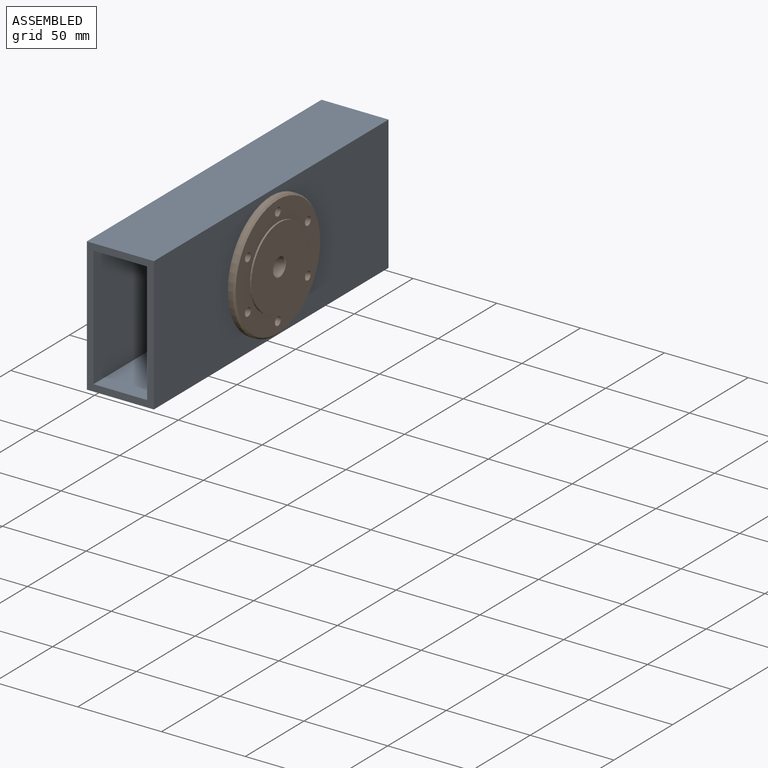
[diagram: assembled view]
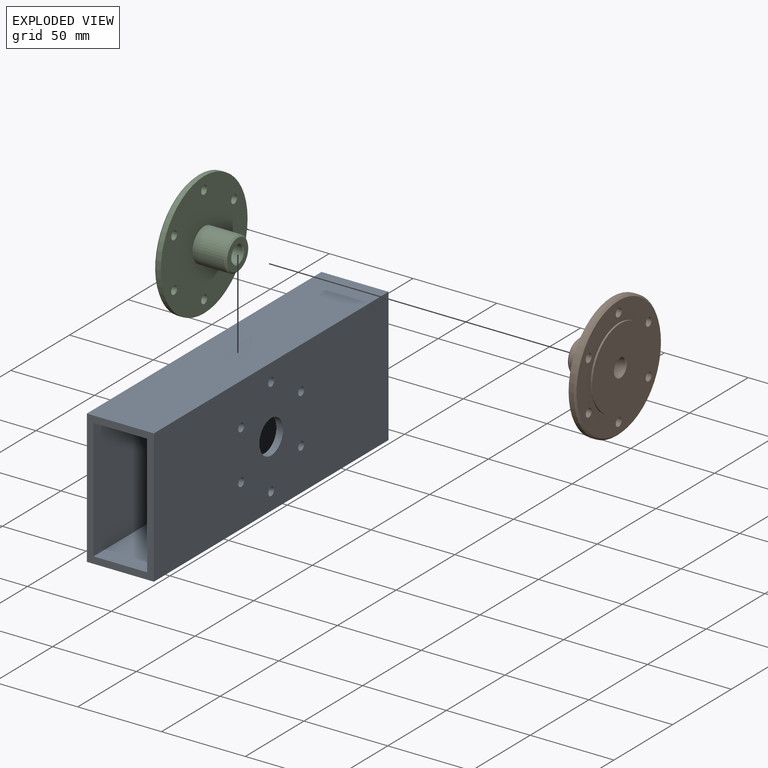
[diagram: exploded view]
GUIDED TOUR — MATED ASSEMBLY (Onshape document 2431cfbd2e3c000338869e15, AutoMate assembly 2431cfbd2e3c000338869e15_644cab37dba1289189b78649_021e0345f2b3809905763d40_default)

This assembly has 3 components, labeled P0..P2 below (a component is one placed occurrence of a part; the same part can appear more than once), held together by 2 mates. A mate is a constraint between two components; its type names the relative motion it leaves free:
  FASTENED — locks the two components together rigidly (no relative motion).
Axis/direction vectors are unit vectors and 'through' points are millimeter coordinates, both in the assembly's world frame.

MATES
  1. FASTENED "Fastened 3": P0 <-> P1, direction (1.000, 0.000, 0.000) through (151.54, -65.89, 65.29) mm
  2. FASTENED "Fastened 1": P0 <-> P2, direction (-1.000, 0.000, 0.000) through (111.54, -65.89, 65.29) mm

ASSEMBLY ORDER
  1. P2 — the base component [order verified]
  2. P0 [order verified]
  3. P1 [order verified]
Order-tag legend:
  [order verified] — this step's position reverses a verified removal order: the component was checked to insert without passing through the ones already placed.

Of the 3 components, 3 carry the full construction recipe — the FeatureScript program that regenerates the part's solid from scratch; the rest are supplied as boundary geometry only.
Each toured component is shown spotlighted twice — in the assembled view, then in the exploded view, where a leader line traces a displaced component back to its assembled socket (saturated green if recipe-attached, orange if geometry-only; every other component desaturated gray) — followed by its recipe or geometry summary and the mates that hold it.
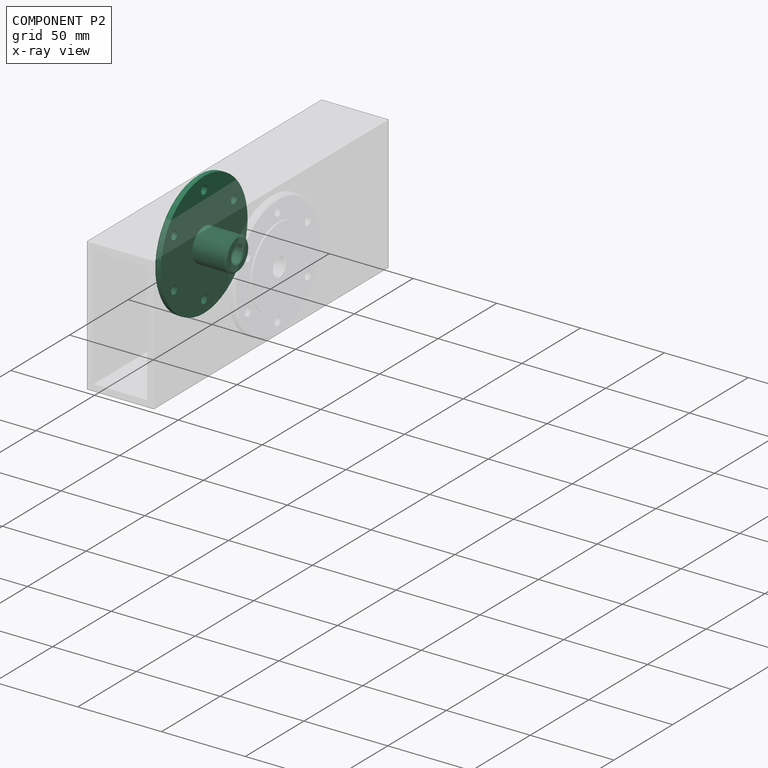
[diagram: component P2 — x-ray view]
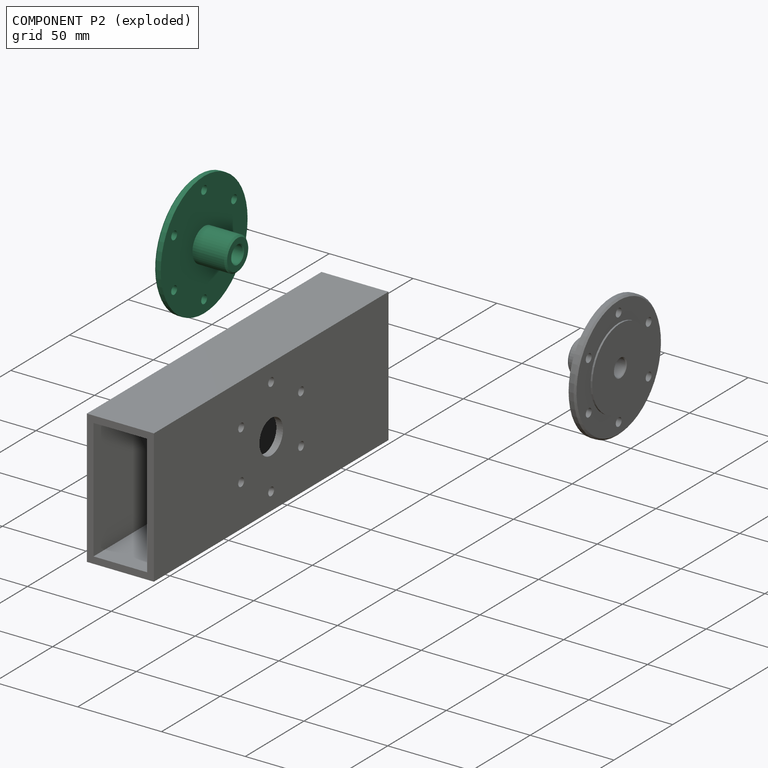
[diagram: component P2 — exploded]
COMPONENT P2 — same part as P1 (CADFS 00293451); its construction recipe is shown at P1.
Held by: FASTENED mate "Fastened 1" to P0.
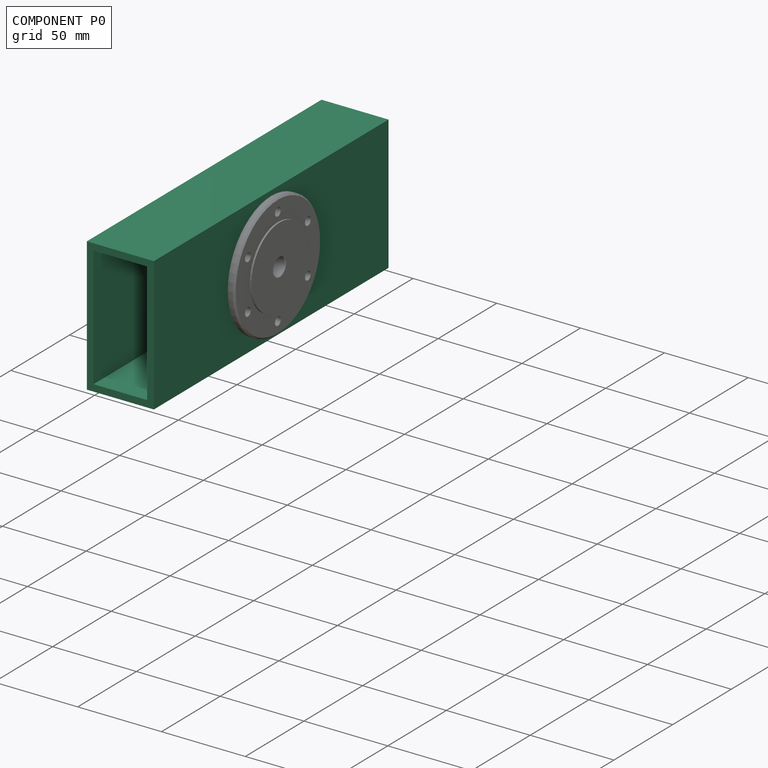
[diagram: component P0 — assembled]
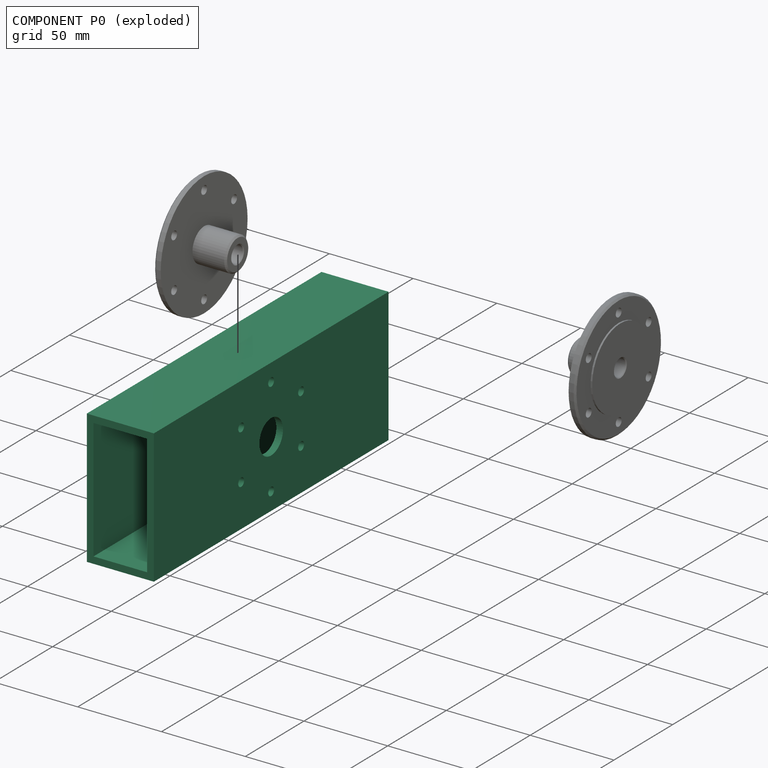
[diagram: component P0 — exploded]
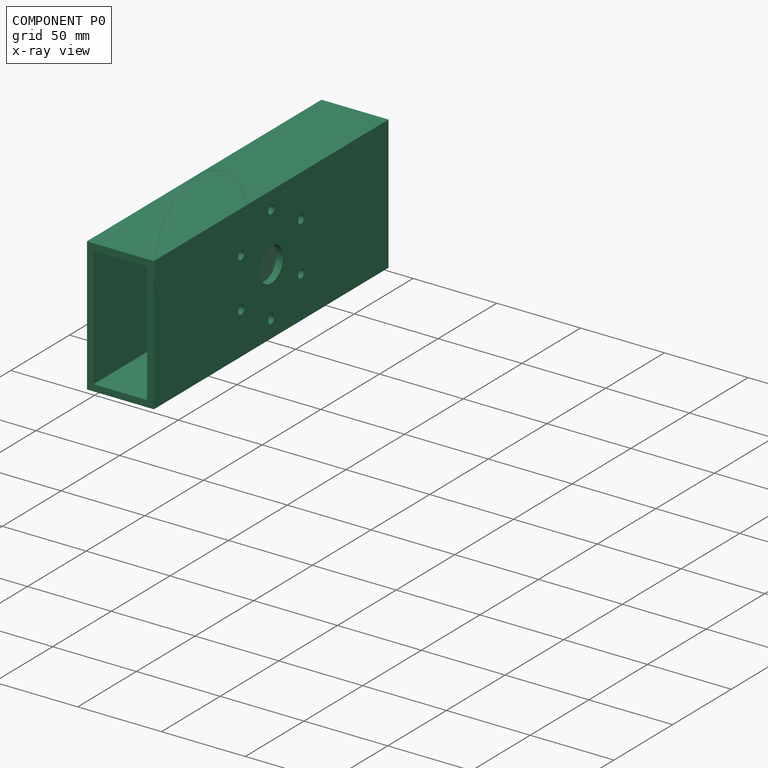
[diagram: component P0 — x-ray view]
COMPONENT P0 — recipe-attached (CADFS 00293453, mesh-verified: the recipe's output STEP matches this component's geometry to below the mesh-comparison resolution (tessellation chordal tolerance ~0.329 mm)).
Held by: FASTENED mate "Fastened 3" to P1; FASTENED mate "Fastened 1" to P2.
Construction recipe (FeatureScript — the CAD program that rebuilds this solid; sketch coordinates are in the units given by the * unit suffixes, e.g. mm):

FeatureScript 1511;
import(path : "onshape/std/geometry.fs", version : "1511.0");
import(path : "onshape/std/common.fs", version : "1511.0");
const mm = millimeter;
const VERTEX = EntityType.VERTEX;
const EDGE = EntityType.EDGE;
const FACE = EntityType.FACE;
const BODY = EntityType.BODY;
function v(x, y){return vector(x, y);}
function OD(order){return orderDisambiguation(order);}
function OSD(set){return originalSetDisambiguation(set);}
function TD(topology){return topologyDisambiguation(topology);}
function TDD(query){return trueDependencyDisambiguation(query);}
function sQuery(a, b, c) {return sketchEntityQuery(a, b, c);}

annotation { "Feature Type Name" : "Feature", "Feature Type Description" : "" }
export const myFeature = defineFeature(function(context is Context, id is Id, definition is map)
    precondition{}
    {
        {
            var Q0;
            Q0=qCreatedBy(makeId("Front.planeOp"),FACE);
            var sketch = newSketch(context, id + "F0", { "sketchPlane" : qUnion([Q0])});
            skLineSegment(sketch, "E0.bottom", {"start": v(-20, 40) * mm, "end": v(20, 40) * mm});
            skLineSegment(sketch, "E0.top", {"start": v(-20, -40) * mm, "end": v(20, -40) * mm});
            skLineSegment(sketch, "E0.left", {"start": v(-20, 40) * mm, "end": v(-20, -40) * mm});
            skLineSegment(sketch, "E0.right", {"start": v(20, 40) * mm, "end": v(20, -40) * mm});
            skPoint(sketch, "E0.middle", {"position": v(0, 0) * mm});
            skLineSegment(sketch, "E1.0", {"start": v(-16, 36) * mm, "end": v(16, 36) * mm});
            skLineSegment(sketch, "E1.1", {"start": v(-16, 36) * mm, "end": v(-16, -36) * mm});
            skLineSegment(sketch, "E1.2", {"start": v(-16, -36) * mm, "end": v(16, -36) * mm});
            skLineSegment(sketch, "E1.3", {"start": v(16, 36) * mm, "end": v(16, -36) * mm});
            skSolve(sketch);
        }
        {
            var Q0;
            Q0=makeQuery(id+"F0.imprint","IMPRINT",FACE,{"disambiguationData":[TD([[makeQuery(id+"F0.imprint","IMPRINT",EDGE,{"derivedFrom":sQuery(id+"F0.wireOp",EDGE,"E0.bottom")}),-1.0]])]});
            extrude(context, id + "F1", {"entities" : qUnion([Q0]), "depth" : 200 * mm});
        }
        {
            var Q0;
            Q0=makeQuery(id+"F1.opExtrude","SWEPT_FACE",FACE,{"disambiguationData":[OSD([sQuery(id+"F0.wireOp",EDGE,"E0.right")])]});
            var sketch = newSketch(context, id + "F2", { "sketchPlane" : qUnion([Q0])});
            skCircle(sketch, "E2", {"center": v(-100, 0) * mm, "radius": 10.1 * mm});
            skSolve(sketch);
        }
        {
            var Q0;
            Q0=makeQuery(id+"F2.imprint","IMPRINT",FACE,{"disambiguationData":[TD([[makeQuery(id+"F2.imprint","IMPRINT",EDGE,{"derivedFrom":sQuery(id+"F2.wireOp",EDGE,"E2")}),1.0]])]});
            extrude(context, id + "F3", {"entities" : qUnion([Q0]), "operationType" : NewBodyOperationType.REMOVE, "endBound" : BoundingType.THROUGH_ALL, "oppositeDirection" : true, "depth" : 25 * mm});
        }
        {
            var Q0;
            Q0=makeQuery(id+"F1.opExtrude","SWEPT_FACE",FACE,{"disambiguationData":[OSD([sQuery(id+"F0.wireOp",EDGE,"E0.right")])]});
            var sketch = newSketch(context, id + "F4", { "sketchPlane" : qUnion([Q0])});
            skLineSegment(sketch, "E3", {"start": v(-100, 0) * mm, "end": v(-100, 48.03) * mm, "construction": true});
            skPoint(sketch, "E3.endSnap0", {"position": v(-100, 40) * mm});
            skCircle(sketch, "E4", {"center": v(-100, 29.5) * mm, "radius": 2.5 * mm});
            skCircle(sketch, "E5.1.0", {"center": v(-125.55, 14.75) * mm, "radius": 2.5 * mm});
            skCircle(sketch, "E5.2.0", {"center": v(-125.55, -14.75) * mm, "radius": 2.5 * mm});
            skCircle(sketch, "E5.3.0", {"center": v(-100, -29.5) * mm, "radius": 2.5 * mm});
            skCircle(sketch, "E5.4.0", {"center": v(-74.45, -14.75) * mm, "radius": 2.5 * mm});
            skCircle(sketch, "E5.5.0", {"center": v(-74.45, 14.75) * mm, "radius": 2.5 * mm});
            skPoint(sketch, "E5.center", {"position": v(-100, 0) * mm});
            skSolve(sketch);
        }
        {
            var Q0;
            Q0=makeQuery(id+"F4.imprint","IMPRINT",FACE,{"disambiguationData":[TD([[makeQuery(id+"F4.imprint","IMPRINT",EDGE,{"derivedFrom":sQuery(id+"F4.wireOp",EDGE,"E5.2.0")}),1.0]])]});
            var Q1;
            Q1=makeQuery(id+"F4.imprint","IMPRINT",FACE,{"disambiguationData":[TD([[makeQuery(id+"F4.imprint","IMPRINT",EDGE,{"derivedFrom":sQuery(id+"F4.wireOp",EDGE,"E5.1.0")}),1.0]])]});
            var Q2;
            Q2=makeQuery(id+"F4.imprint","IMPRINT",FACE,{"disambiguationData":[TD([[makeQuery(id+"F4.imprint","IMPRINT",EDGE,{"derivedFrom":sQuery(id+"F4.wireOp",EDGE,"E4")}),1.0]])]});
            var Q3;
            Q3=makeQuery(id+"F4.imprint","IMPRINT",FACE,{"disambiguationData":[TD([[makeQuery(id+"F4.imprint","IMPRINT",EDGE,{"derivedFrom":sQuery(id+"F4.wireOp",EDGE,"E5.5.0")}),1.0]])]});
            var Q4;
            Q4=makeQuery(id+"F4.imprint","IMPRINT",FACE,{"disambiguationData":[TD([[makeQuery(id+"F4.imprint","IMPRINT",EDGE,{"derivedFrom":sQuery(id+"F4.wireOp",EDGE,"E5.4.0")}),1.0]])]});
            var Q5;
            Q5=makeQuery(id+"F4.imprint","IMPRINT",FACE,{"disambiguationData":[TD([[makeQuery(id+"F4.imprint","IMPRINT",EDGE,{"derivedFrom":sQuery(id+"F4.wireOp",EDGE,"E5.3.0")}),1.0]])]});
            extrude(context, id + "F5", {"entities" : qUnion([Q0, Q1, Q2, Q3, Q4, Q5]), "operationType" : NewBodyOperationType.REMOVE, "endBound" : BoundingType.THROUGH_ALL, "oppositeDirection" : true, "depth" : 25 * mm});
        }
    });
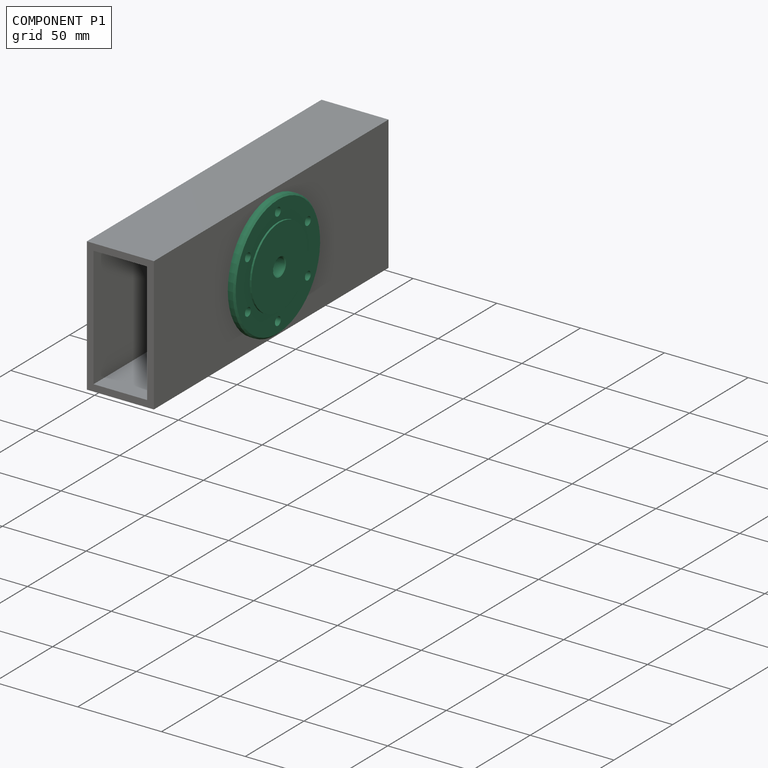
[diagram: component P1 — assembled]
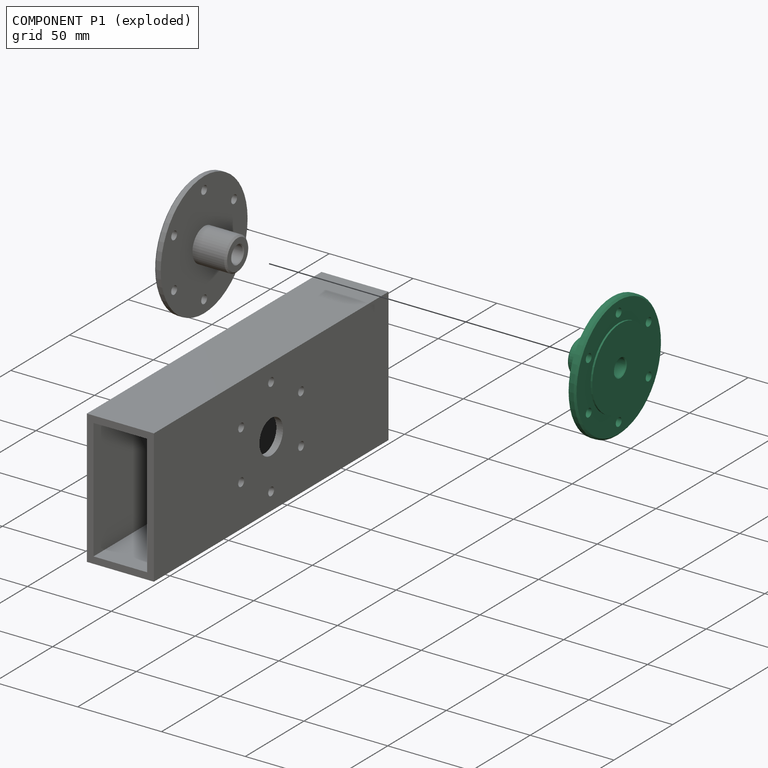
[diagram: component P1 — exploded]
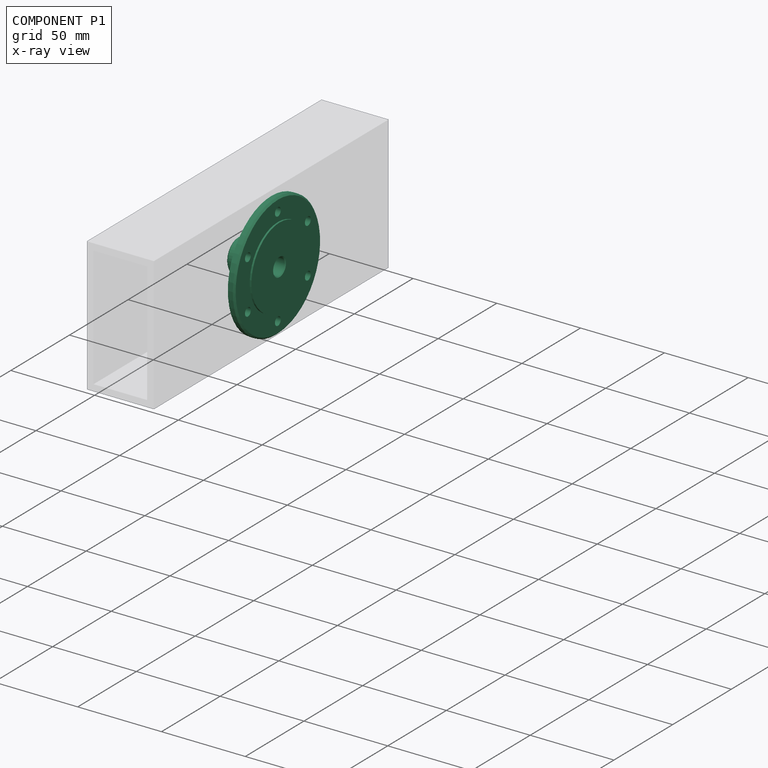
[diagram: component P1 — x-ray view]
COMPONENT P1 — recipe-attached (CADFS 00293451, mesh-verified: the recipe's output STEP matches this component's geometry to below the mesh-comparison resolution (tessellation chordal tolerance ~0.161 mm)).
Held by: FASTENED mate "Fastened 3" to P0.
Construction recipe (FeatureScript — the CAD program that rebuilds this solid; sketch coordinates are in the units given by the * unit suffixes, e.g. mm):

FeatureScript 1511;
import(path : "onshape/std/geometry.fs", version : "1511.0");
import(path : "onshape/std/common.fs", version : "1511.0");
const mm = millimeter;
const VERTEX = EntityType.VERTEX;
const EDGE = EntityType.EDGE;
const FACE = EntityType.FACE;
const BODY = EntityType.BODY;
function v(x, y){return vector(x, y);}
function OD(order){return orderDisambiguation(order);}
function OSD(set){return originalSetDisambiguation(set);}
function TD(topology){return topologyDisambiguation(topology);}
function TDD(query){return trueDependencyDisambiguation(query);}
function sQuery(a, b, c) {return sketchEntityQuery(a, b, c);}

annotation { "Feature Type Name" : "Feature", "Feature Type Description" : "" }
export const myFeature = defineFeature(function(context is Context, id is Id, definition is map)
    precondition{}
    {
        {
            var Q0;
            Q0=qCreatedBy(makeId("Front.planeOp"),FACE);
            var sketch = newSketch(context, id + "F0", { "sketchPlane" : qUnion([Q0])});
            skLineSegment(sketch, "E0", {"start": v(-26.84, 0) * mm, "end": v(30.3, 0) * mm, "construction": true});
            skLineSegment(sketch, "E1", {"start": v(-5, 5) * mm, "end": v(-5, 24) * mm});
            skLineSegment(sketch, "E2", {"start": v(-5, 24) * mm, "end": v(-4, 24) * mm});
            skLineSegment(sketch, "E3", {"start": v(-4, 24) * mm, "end": v(-4, 37) * mm});
            skLineSegment(sketch, "E4", {"start": v(-4, 37) * mm, "end": v(0, 37) * mm});
            skLineSegment(sketch, "E5", {"start": v(0, 37) * mm, "end": v(0, 10) * mm});
            skLineSegment(sketch, "E6", {"start": v(0, 10) * mm, "end": v(20, 10) * mm});
            skLineSegment(sketch, "E7", {"start": v(20, 10) * mm, "end": v(20, 5) * mm});
            skLineSegment(sketch, "E8", {"start": v(20, 5) * mm, "end": v(0, 5) * mm});
            skLineSegment(sketch, "E9", {"start": v(0, 5) * mm, "end": v(-5, 5) * mm});
            skSolve(sketch);
        }
        {
            var Q0;
            Q0=makeQuery(id+"F0.imprint","IMPRINT",FACE,{"disambiguationData":[TD([[makeQuery(id+"F0.imprint","IMPRINT",EDGE,{"derivedFrom":sQuery(id+"F0.wireOp",EDGE,"E1")}),-1.0]])]});
            var Q1;
            Q1=sQuery(id+"F0.wireOp",EDGE,"E0");
            revolve(context, id + "F1", {"entities" : qUnion([Q0]), "axis" : qUnion([Q1]), "revolveType" : RevolveType.FULL});
        }
        {
            var Q0;
            Q0=makeQuery(id+"F1.opRevolve","SWEPT_FACE",FACE,{"disambiguationData":[OSD([sQuery(id+"F0.wireOp",EDGE,"E5")])]});
            var sketch = newSketch(context, id + "F2", { "sketchPlane" : qUnion([Q0])});
            skCircle(sketch, "E10", {"center": v(0, 29.5) * mm, "radius": 2.5 * mm});
            skCircle(sketch, "E11.1.0", {"center": v(-25.55, 14.75) * mm, "radius": 2.5 * mm});
            skCircle(sketch, "E11.2.0", {"center": v(-25.55, -14.75) * mm, "radius": 2.5 * mm});
            skCircle(sketch, "E11.3.0", {"center": v(0, -29.5) * mm, "radius": 2.5 * mm});
            skCircle(sketch, "E11.4.0", {"center": v(25.55, -14.75) * mm, "radius": 2.5 * mm});
            skCircle(sketch, "E11.5.0", {"center": v(25.55, 14.75) * mm, "radius": 2.5 * mm});
            skPoint(sketch, "E11.center", {"position": v(0, 0) * mm});
            skLineSegment(sketch, "E12", {"start": v(-25.55, 14.75) * mm, "end": v(0, 0) * mm, "construction": true});
            skLineSegment(sketch, "E13.1.0", {"start": v(-25.55, -14.75) * mm, "end": v(0, 0) * mm, "construction": true});
            skLineSegment(sketch, "E13.2.0", {"start": v(0, -29.5) * mm, "end": v(0, 0) * mm, "construction": true});
            skLineSegment(sketch, "E13.3.0", {"start": v(25.55, -14.75) * mm, "end": v(0, 0) * mm, "construction": true});
            skLineSegment(sketch, "E13.4.0", {"start": v(25.55, 14.75) * mm, "end": v(0, 0) * mm, "construction": true});
            skLineSegment(sketch, "E13.5.0", {"start": v(0, 29.5) * mm, "end": v(0, 0) * mm, "construction": true});
            skSolve(sketch);
        }
        {
            var Q0;
            Q0=makeQuery(id+"F2.imprint","IMPRINT",FACE,{"disambiguationData":[TD([[makeQuery(id+"F2.imprint","IMPRINT",EDGE,{"derivedFrom":sQuery(id+"F2.wireOp",EDGE,"E10")}),1.0]])]});
            var Q1;
            Q1=makeQuery(id+"F2.imprint","IMPRINT",FACE,{"disambiguationData":[TD([[makeQuery(id+"F2.imprint","IMPRINT",EDGE,{"derivedFrom":sQuery(id+"F2.wireOp",EDGE,"E11.1.0")}),1.0]])]});
            var Q2;
            Q2=makeQuery(id+"F2.imprint","IMPRINT",FACE,{"disambiguationData":[TD([[makeQuery(id+"F2.imprint","IMPRINT",EDGE,{"derivedFrom":sQuery(id+"F2.wireOp",EDGE,"E11.2.0")}),1.0]])]});
            var Q3;
            Q3=makeQuery(id+"F2.imprint","IMPRINT",FACE,{"disambiguationData":[TD([[makeQuery(id+"F2.imprint","IMPRINT",EDGE,{"derivedFrom":sQuery(id+"F2.wireOp",EDGE,"E11.3.0")}),1.0]])]});
            var Q4;
            Q4=makeQuery(id+"F2.imprint","IMPRINT",FACE,{"disambiguationData":[TD([[makeQuery(id+"F2.imprint","IMPRINT",EDGE,{"derivedFrom":sQuery(id+"F2.wireOp",EDGE,"E11.4.0")}),1.0]])]});
            var Q5;
            Q5=makeQuery(id+"F2.imprint","IMPRINT",FACE,{"disambiguationData":[TD([[makeQuery(id+"F2.imprint","IMPRINT",EDGE,{"derivedFrom":sQuery(id+"F2.wireOp",EDGE,"E11.5.0")}),1.0]])]});
            extrude(context, id + "F3", {"entities" : qUnion([Q0, Q1, Q2, Q3, Q4, Q5]), "operationType" : NewBodyOperationType.REMOVE, "endBound" : BoundingType.THROUGH_ALL, "oppositeDirection" : true, "depth" : 25 * mm});
        }
        {
            var Q0;
            Q0=makeQuery(id+"F1.opRevolve","SWEPT_EDGE",EDGE,{"disambiguationData":[OSD([sQuery(id+"F0.wireOp",EDGE,"E6"),sQuery(id+"F0.wireOp",EDGE,"E7")])]});
            var Q1;
            Q1=makeQuery(id+"F1.opRevolve","SWEPT_EDGE",EDGE,{"disambiguationData":[OSD([sQuery(id+"F0.wireOp",EDGE,"E3"),sQuery(id+"F0.wireOp",EDGE,"E4")])]});
            chamfer(context, id + "F4", {"entities" : qUnion([Q0, Q1]), "width" : 1 * mm, "tangentPropagation" : true});
        }
        {
            var Q0;
            Q0=makeQuery(id+"F1.opRevolve","SWEPT_EDGE",EDGE,{"disambiguationData":[OSD([sQuery(id+"F0.wireOp",EDGE,"E1"),sQuery(id+"F0.wireOp",EDGE,"E9")])]});
            var Q1;
            Q1=makeQuery(id+"F1.opRevolve","SWEPT_EDGE",EDGE,{"disambiguationData":[OSD([sQuery(id+"F0.wireOp",EDGE,"E7"),sQuery(id+"F0.wireOp",EDGE,"E8")])]});
            chamfer(context, id + "F5", {"entities" : qUnion([Q0, Q1]), "width" : .5 * mm, "tangentPropagation" : true});
        }
    });
PROVENANCE & LICENSES
Assembly (occurrences, transforms, mates, per-part STEP geometry): AutoMate dataset, Zenodo record 7776208, CC0.
Construction recipes: CADFS (HuggingFace VladPyatov/CADFS, CC-BY-4.0, layered over the ABC dataset), FeatureScript reconstruction programs keyed by ABC model id.
Join: ABC meta listings map ABC model id -> Onshape documentId; within a shared document, parts are matched by geometric signature (bounding-box dims + volume at 0.1% relative tolerance, exact B-rep face/solid counts).
Verification: 3 of this assembly's 3 components carry a recipe attachment, and every attachment is mesh-verified: the CADFS STEP and the AutoMate member STEP were compared as meshes in their shared local frame (symmetric sampled-point-to-mesh distance); worst across the 3 attachments: below the mesh-comparison resolution (tessellation chordal tolerance ~0.329 mm) on a 219 mm part.
Renders: orthographic iso camera (az 35 / el 25); the floor grid conveys scale (grid pitch printed in each image; no ruler). In the exploded view each component is displaced by its stored offset vector: the offsets alone carry the explosion direction (mate normal/axis signs are not orientation cues and do not encode it), and separation distances are assigned per mate-chain, not proportionally to assembly-order depth.
